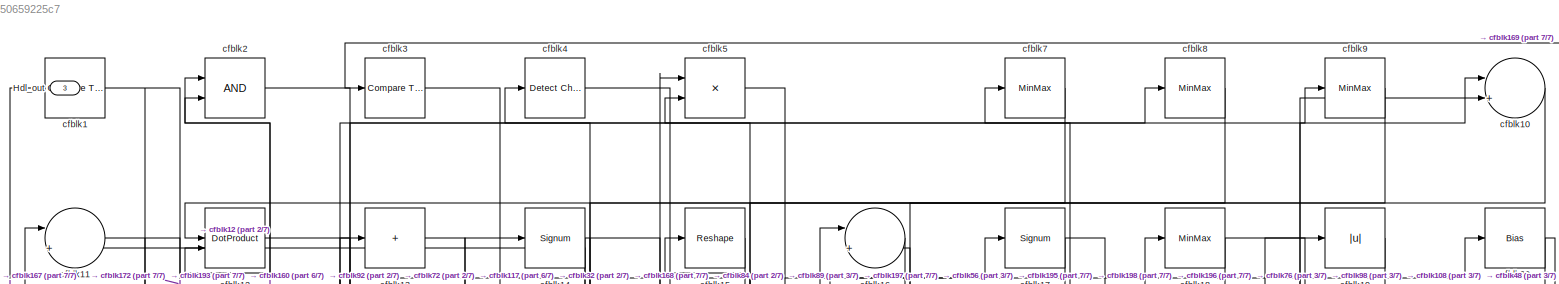
[diagram: root canvas - part 1/7, full width, top band]
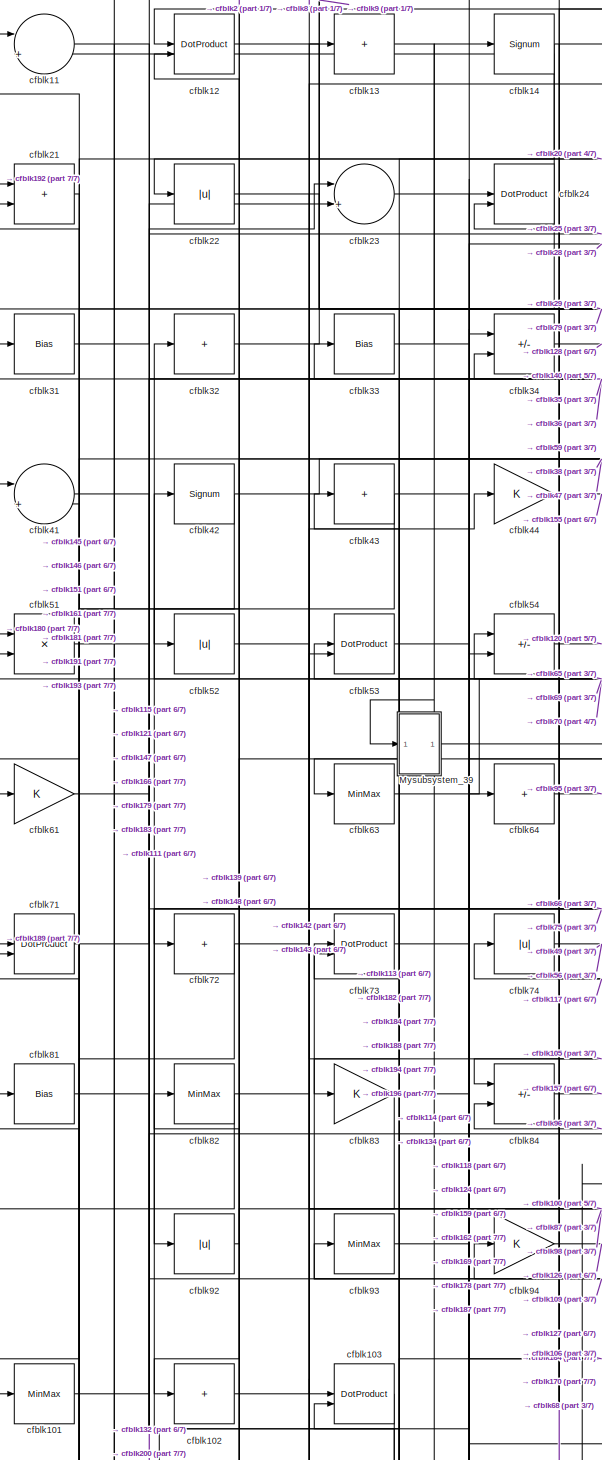
[diagram: root canvas - part 2/7, top left region]
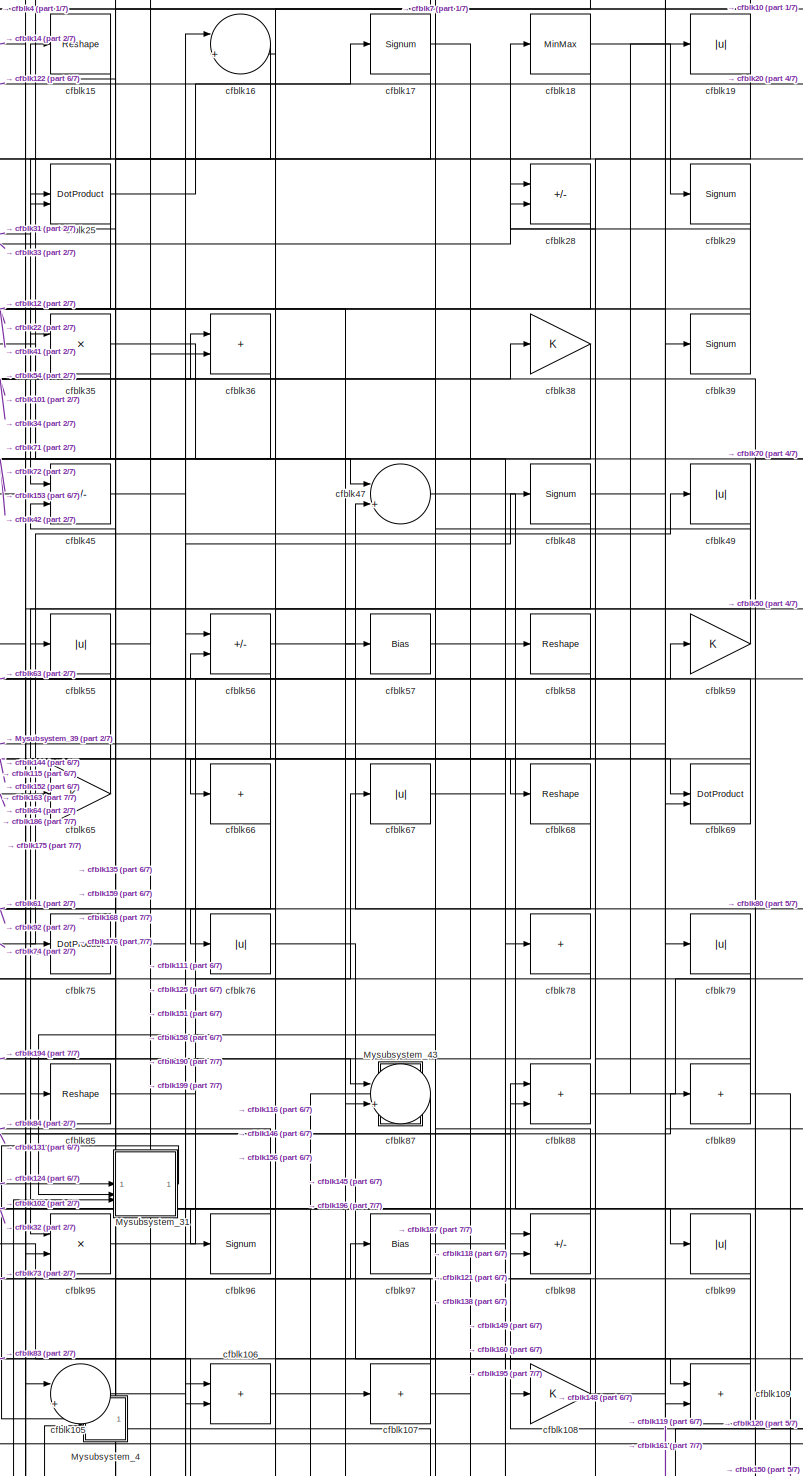
[diagram: root canvas - part 3/7, top center region]
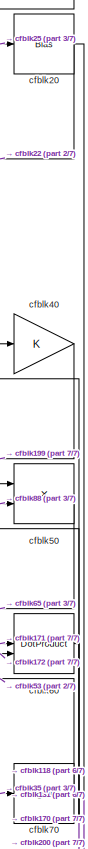
[diagram: root canvas - part 4/7, top right region]
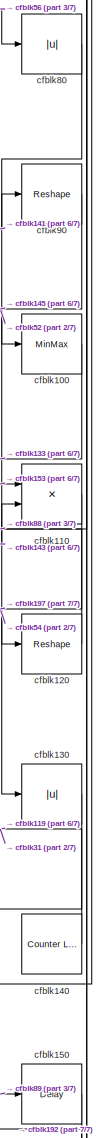
[diagram: root canvas - part 5/7, middle right region]
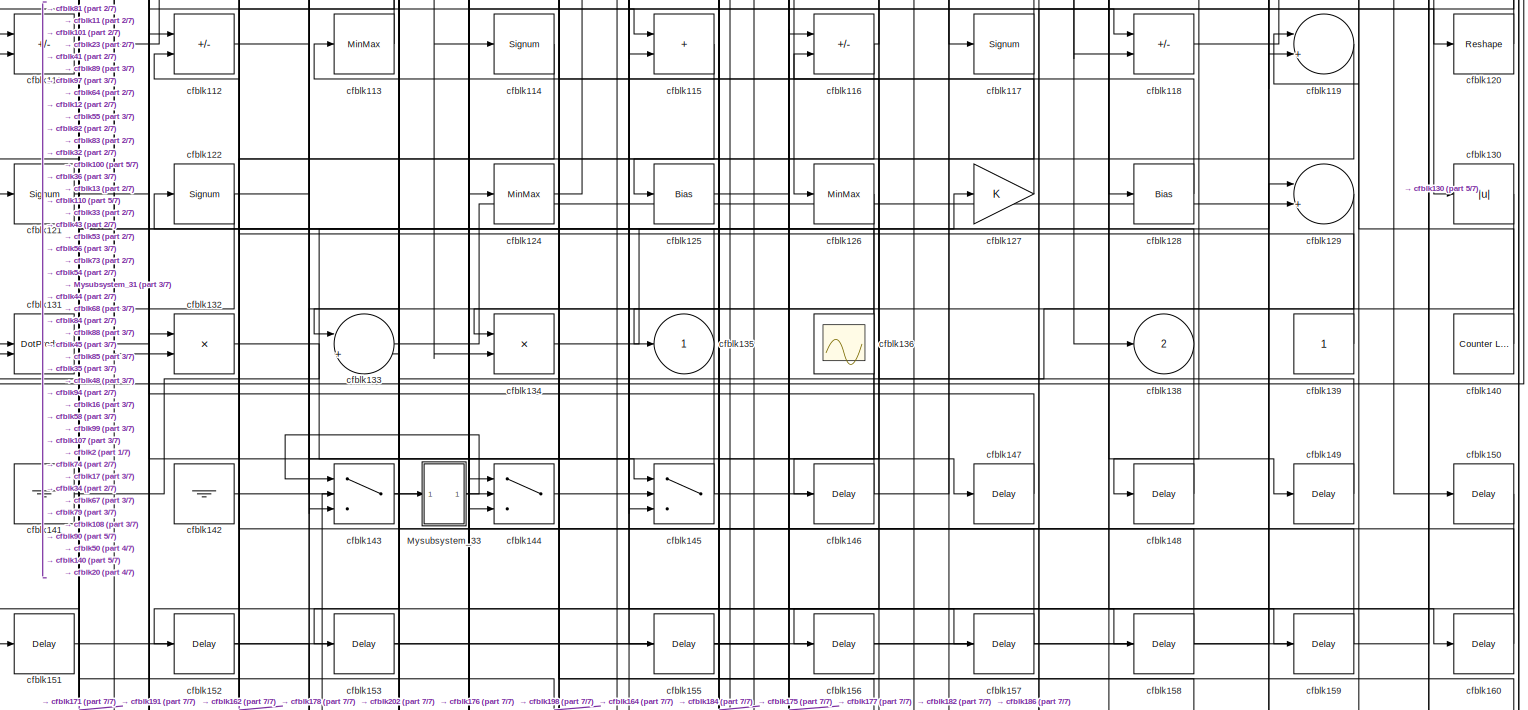
[diagram: root canvas - part 6/7, full width, middle band]
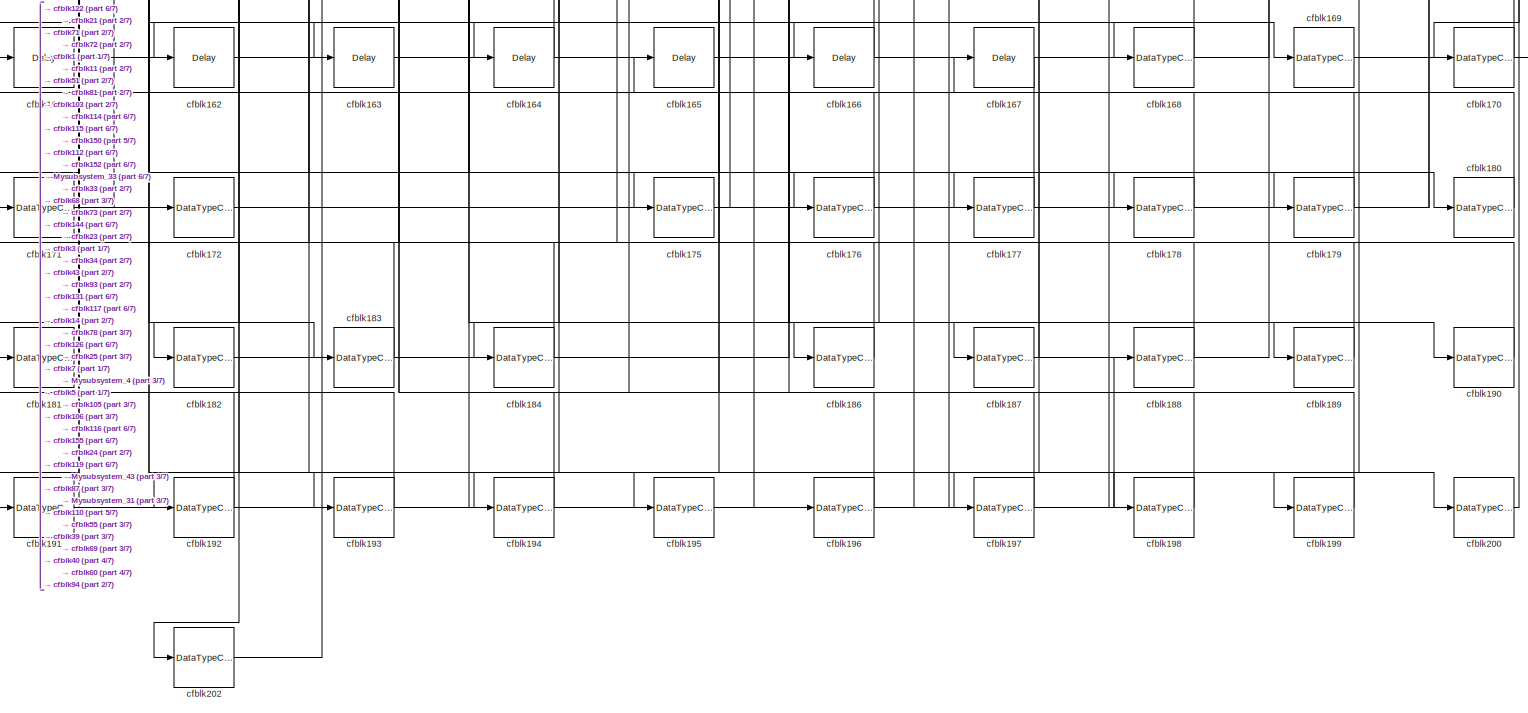
[diagram: root canvas - part 7/7, full width, bottom band]
MODEL slx_f650659225c7
KIND model
CONFIG AbsTol = auto
CONFIG EnableMultiTasking = off
CONFIG FixedStep = auto
CONFIG MaxStep = auto
CONFIG MinStep = auto
CONFIG RelTol = 1e-3
CONFIG SampleTimeConstraint = Unconstrained
CONFIG SolverName = VariableStepAuto
CONFIG StartTime = 0.0
CONFIG StopTime = 10.0
BLOCK [Outport] Hdl_out
  OutDataTypeStr = uint8
  Port = 3
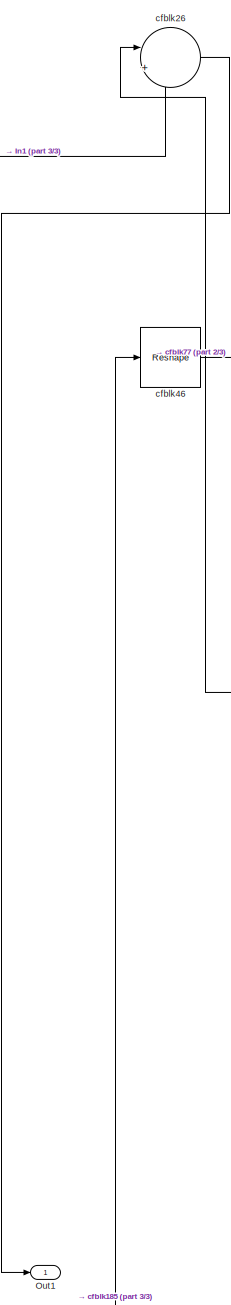
[diagram: Mysubsystem_31 - part 1/3, top center region]
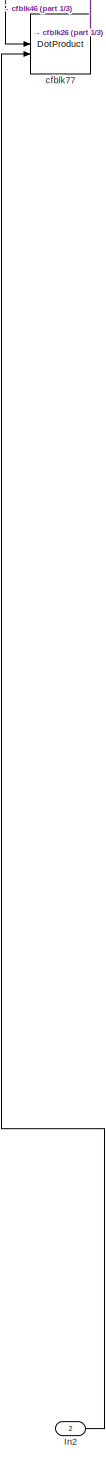
[diagram: Mysubsystem_31 - part 2/3, middle right region]
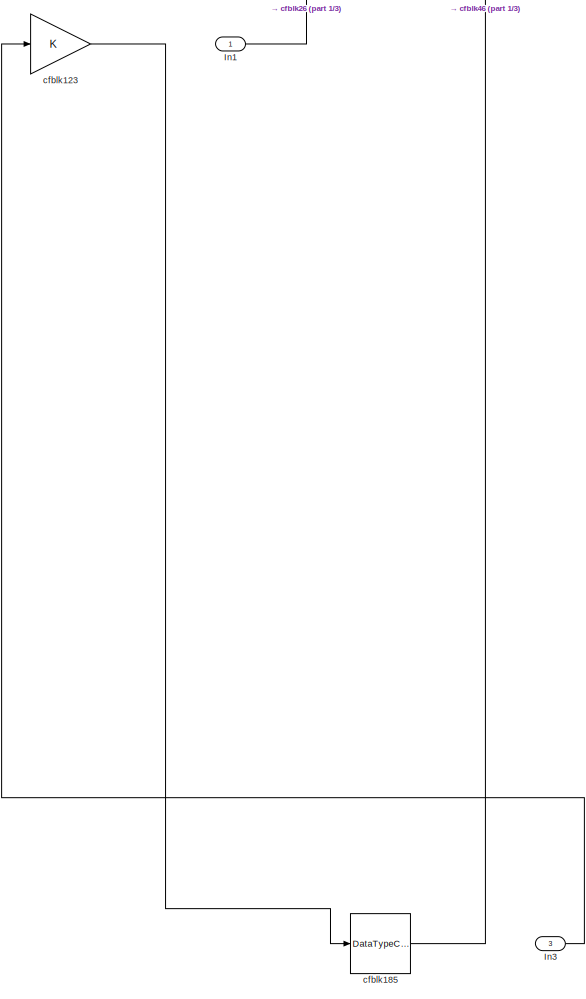
[diagram: Mysubsystem_31 - part 3/3, full width, bottom band]
BLOCK [SubSystem] Mysubsystem_31
  RTWFcnName = Mysubsystem_31
  RTWFcnNameOpts = User specified
  RTWFileNameOpts = Use function name
  RTWSystemCode = Reusable function
  TreatAsAtomicUnit = on
BLOCK [Inport] Mysubsystem_31/In1
BLOCK [Inport] Mysubsystem_31/In2
  Port = 2
BLOCK [Inport] Mysubsystem_31/In3
  Port = 3
BLOCK [Outport] Mysubsystem_31/Out1
BLOCK [Gain] Mysubsystem_31/cfblk123
BLOCK [DataTypeConversion] Mysubsystem_31/cfblk185
  OutDataTypeStr = uint8
  RndMeth = Floor
  SaturateOnIntegerOverflow = off
BLOCK [Sum] Mysubsystem_31/cfblk26
  Inputs = |++
BLOCK [Reshape] Mysubsystem_31/cfblk46
BLOCK [DotProduct] Mysubsystem_31/cfblk77
  OutDataTypeStr = Inherit: Inherit via internal rule
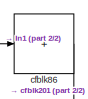
[diagram: Mysubsystem_33 - part 1/2, top right region]
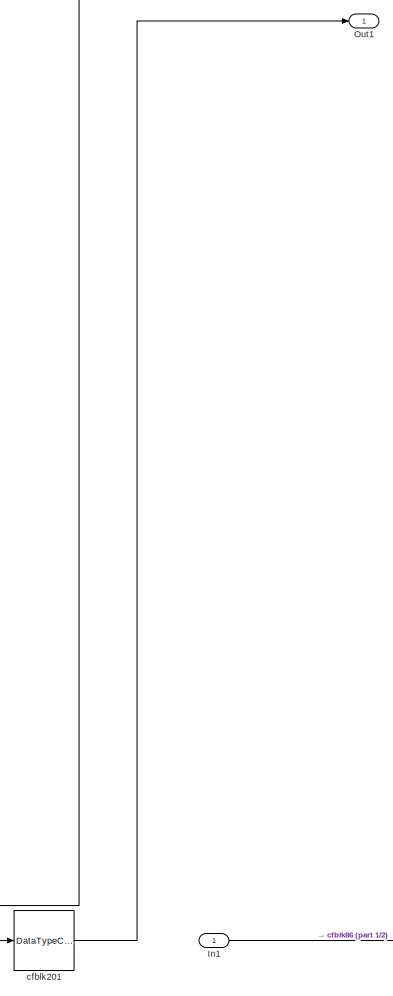
[diagram: Mysubsystem_33 - part 2/2, bottom left region]
BLOCK [SubSystem] Mysubsystem_33
  RTWFcnName = Mysubsystem_33
  RTWFcnNameOpts = User specified
  RTWFileNameOpts = Use function name
  RTWSystemCode = Reusable function
  TreatAsAtomicUnit = on
BLOCK [Inport] Mysubsystem_33/In1
BLOCK [Outport] Mysubsystem_33/Out1
BLOCK [DataTypeConversion] Mysubsystem_33/cfblk201
  OutDataTypeStr = uint8
  RndMeth = Floor
  SaturateOnIntegerOverflow = off
BLOCK [Sum] Mysubsystem_33/cfblk86
  IconShape = rectangular
  Inputs = +
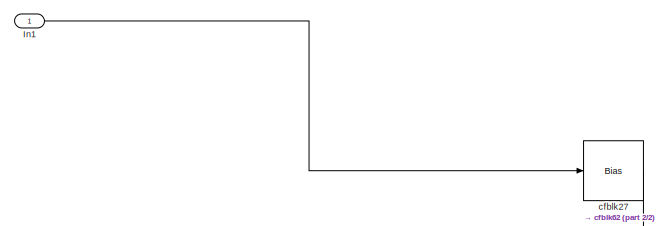
[diagram: Mysubsystem_39 - part 1/2, top center region]
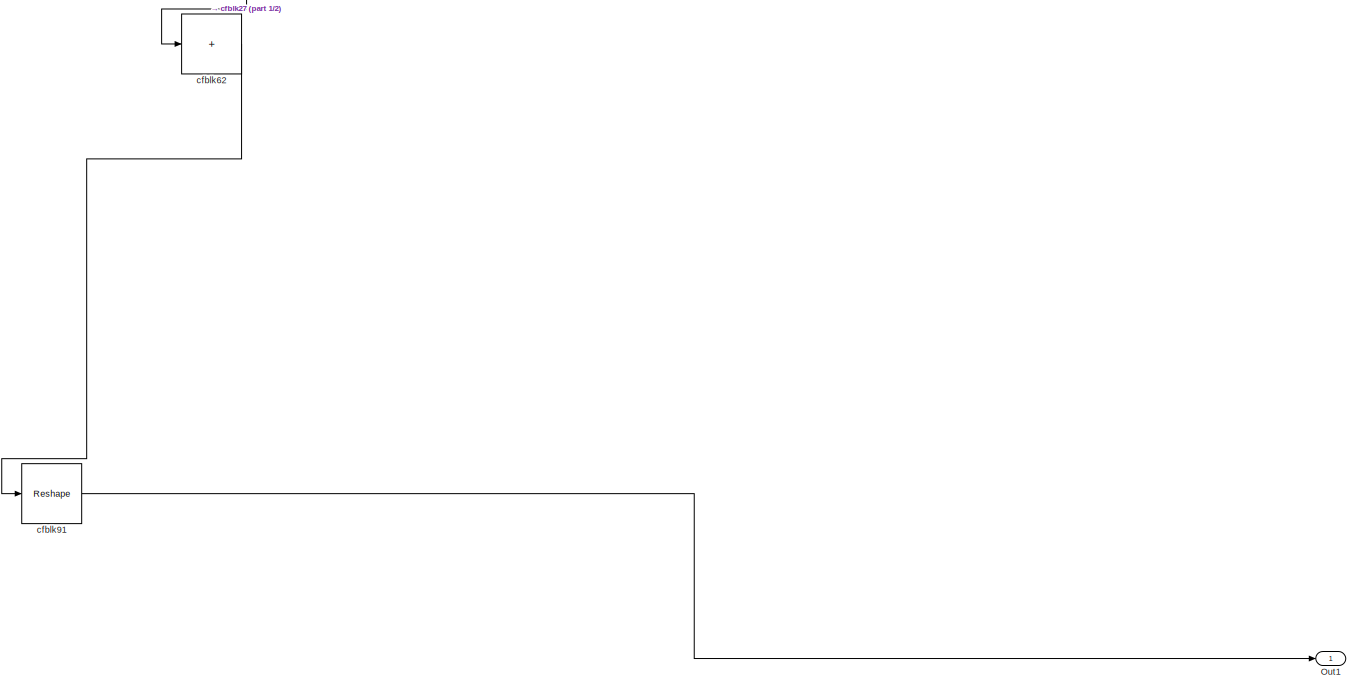
[diagram: Mysubsystem_39 - part 2/2, full width, bottom band]
BLOCK [SubSystem] Mysubsystem_39
  RTWFcnName = Mysubsystem_39
  RTWFcnNameOpts = User specified
  RTWFileNameOpts = Use function name
  RTWSystemCode = Reusable function
  TreatAsAtomicUnit = on
BLOCK [Inport] Mysubsystem_39/In1
BLOCK [Outport] Mysubsystem_39/Out1
BLOCK [Bias] Mysubsystem_39/cfblk27
  Bias = 0.0
  SaturateOnIntegerOverflow = off
BLOCK [Sum] Mysubsystem_39/cfblk62
  IconShape = rectangular
  Inputs = +
BLOCK [Reshape] Mysubsystem_39/cfblk91
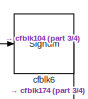
[diagram: Mysubsystem_4 - part 1/4, top center region]
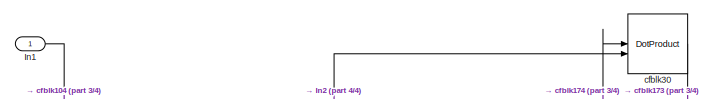
[diagram: Mysubsystem_4 - part 2/4, top right region]
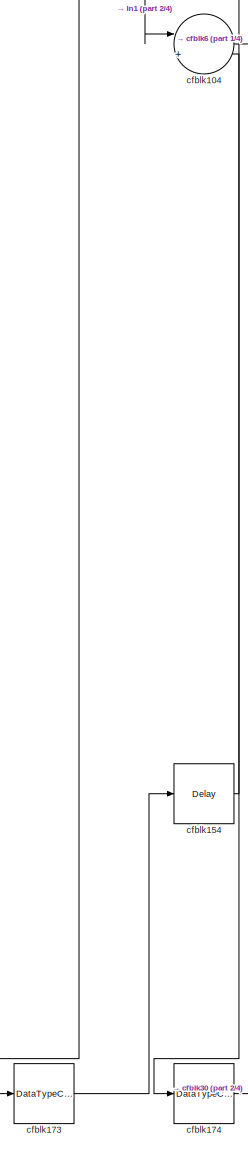
[diagram: Mysubsystem_4 - part 3/4, bottom left region]
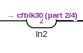
[diagram: Mysubsystem_4 - part 4/4, bottom left region]
BLOCK [SubSystem] Mysubsystem_4
  RTWFcnName = Mysubsystem_4
  RTWFcnNameOpts = User specified
  RTWFileNameOpts = Use function name
  RTWSystemCode = Reusable function
  TreatAsAtomicUnit = on
BLOCK [Inport] Mysubsystem_4/In1
BLOCK [Inport] Mysubsystem_4/In2
  Port = 2
BLOCK [Sum] Mysubsystem_4/cfblk104
  Inputs = |++
BLOCK [Delay] Mysubsystem_4/cfblk154
  InputPortMap = u0
  SampleTime = 1
BLOCK [DataTypeConversion] Mysubsystem_4/cfblk173
  OutDataTypeStr = uint8
  RndMeth = Floor
  SaturateOnIntegerOverflow = off
BLOCK [DataTypeConversion] Mysubsystem_4/cfblk174
  OutDataTypeStr = uint8
  RndMeth = Floor
  SaturateOnIntegerOverflow = off
BLOCK [DotProduct] Mysubsystem_4/cfblk30
  OutDataTypeStr = Inherit: Inherit via internal rule
BLOCK [Signum] Mysubsystem_4/cfblk6
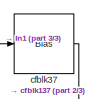
[diagram: Mysubsystem_43 - part 1/3, top right region]
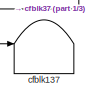
[diagram: Mysubsystem_43 - part 2/3, middle right region]
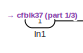
[diagram: Mysubsystem_43 - part 3/3, bottom left region]
BLOCK [SubSystem] Mysubsystem_43
  RTWFcnName = Mysubsystem_43
  RTWFcnNameOpts = User specified
  RTWFileNameOpts = Use function name
  RTWSystemCode = Reusable function
  TreatAsAtomicUnit = on
BLOCK [Inport] Mysubsystem_43/In1
BLOCK [Terminator] Mysubsystem_43/cfblk137
BLOCK [Bias] Mysubsystem_43/cfblk37
  Bias = 0.0
  SaturateOnIntegerOverflow = off
BLOCK [Reference] cfblk1  REF=hdlsllib/Logic and Bit
Operations/Compare
To Zero
  SourceBlock = hdlsllib/Logic and Bit\nOperations/Compare\nTo Zero
  SourceType = Compare To Zero
BLOCK [Sum] cfblk10
  Inputs = |++
  OutDataTypeStr = uint8
BLOCK [MinMax] cfblk100
  OutDataTypeStr = uint8
BLOCK [MinMax] cfblk101
  OutDataTypeStr = uint8
BLOCK [Sum] cfblk102
  IconShape = rectangular
  Inputs = +
  OutDataTypeStr = uint8
BLOCK [DotProduct] cfblk103
  OutDataTypeStr = uint8
BLOCK [Sum] cfblk105
  Inputs = |++
  OutDataTypeStr = uint8
BLOCK [Sum] cfblk106
  IconShape = rectangular
  OutDataTypeStr = uint8
BLOCK [Sum] cfblk107
  IconShape = rectangular
  Inputs = +
  OutDataTypeStr = uint8
BLOCK [Gain] cfblk108
  OutDataTypeStr = uint8
BLOCK [Sum] cfblk109
  IconShape = rectangular
  OutDataTypeStr = uint8
BLOCK [Sum] cfblk11
  Inputs = |++
  OutDataTypeStr = uint8
BLOCK [Product] cfblk110
  Inputs = */
  OutDataTypeStr = uint8
  RndMeth = Zero
  SaturateOnIntegerOverflow = on
BLOCK [Sum] cfblk111
  IconShape = rectangular
  Inputs = +-
  OutDataTypeStr = uint8
BLOCK [Sum] cfblk112
  IconShape = rectangular
  Inputs = +-
  OutDataTypeStr = uint8
BLOCK [MinMax] cfblk113
  OutDataTypeStr = uint8
BLOCK [Signum] cfblk114
BLOCK [Sum] cfblk115
  IconShape = rectangular
  OutDataTypeStr = uint8
BLOCK [Sum] cfblk116
  IconShape = rectangular
  Inputs = +-
  OutDataTypeStr = uint8
BLOCK [Signum] cfblk117
BLOCK [Sum] cfblk118
  IconShape = rectangular
  Inputs = +-
  OutDataTypeStr = uint8
BLOCK [Sum] cfblk119
  Inputs = |++
  OutDataTypeStr = uint8
BLOCK [DotProduct] cfblk12
  OutDataTypeStr = uint8
BLOCK [Reshape] cfblk120
BLOCK [Signum] cfblk121
BLOCK [Signum] cfblk122
BLOCK [MinMax] cfblk124
  OutDataTypeStr = uint8
BLOCK [Bias] cfblk125
  Bias = 0.0
  SaturateOnIntegerOverflow = off
BLOCK [MinMax] cfblk126
  OutDataTypeStr = uint8
BLOCK [Gain] cfblk127
  OutDataTypeStr = uint8
BLOCK [Bias] cfblk128
  Bias = 0.0
  SaturateOnIntegerOverflow = off
BLOCK [Sum] cfblk129
  Inputs = |++
  OutDataTypeStr = uint8
BLOCK [Sum] cfblk13
  IconShape = rectangular
  Inputs = +
  OutDataTypeStr = uint8
BLOCK [Abs] cfblk130
  OutDataTypeStr = uint8
  SaturateOnIntegerOverflow = off
BLOCK [DotProduct] cfblk131
  OutDataTypeStr = uint8
BLOCK [Product] cfblk132
  Inputs = */
  OutDataTypeStr = uint8
  RndMeth = Zero
  SaturateOnIntegerOverflow = on
BLOCK [Sum] cfblk133
  Inputs = |++
  OutDataTypeStr = uint8
BLOCK [Product] cfblk134
  Inputs = */
  OutDataTypeStr = uint8
  RndMeth = Zero
  SaturateOnIntegerOverflow = on
BLOCK [Outport] cfblk135
  OutDataTypeStr = uint8
  VectorParamsAs1DForOutWhenUnconnected = off
BLOCK [Scope] cfblk136
  Floating = on
  NumInputPorts = 1
  ScopeSpecificationString = Simulink.scopes.TimeScopeBlockCfg('CurrentConfiguration', extmgr.ConfigurationSet(extmgr.Configuration('Core','General UI',true,'FigureColor',[0.156862745098039 0.156862745098039 0.156862745098039]),extmgr.Configuration('Core','Source UI',true),extmgr.Configuration('Sources','WiredSimulink',true,'DataLoggingVariableName','ScopeData1','DataLoggingSaveFormat','StructureWithTime','DataLoggingLimitDat...<+2713ch>
BLOCK [Outport] cfblk138
  OutDataTypeStr = uint8
  Port = 2
  VectorParamsAs1DForOutWhenUnconnected = off
BLOCK [Constant] cfblk139
  OutDataTypeStr = uint8
  SampleTime = -1
BLOCK [Signum] cfblk14
BLOCK [Reference] cfblk140  REF=hdlsllib/Sources/Counter
Limited
  SourceBlock = hdlsllib/Sources/Counter\nLimited
  SourceType = Counter Limited
BLOCK [Ground] cfblk141
BLOCK [Ground] cfblk142
BLOCK [Switch] cfblk143
  InputSameDT = off
  OutDataTypeStr = uint8
  SaturateOnIntegerOverflow = off
BLOCK [Switch] cfblk144
  InputSameDT = off
  OutDataTypeStr = uint8
  SaturateOnIntegerOverflow = off
BLOCK [Switch] cfblk145
  InputSameDT = off
  OutDataTypeStr = uint8
  SaturateOnIntegerOverflow = off
BLOCK [Delay] cfblk146
  InputPortMap = u0
  SampleTime = 1
BLOCK [Delay] cfblk147
  InputPortMap = u0
  SampleTime = 1
BLOCK [Delay] cfblk148
  InputPortMap = u0
  SampleTime = 1
BLOCK [Delay] cfblk149
  InputPortMap = u0
  SampleTime = 1
BLOCK [Reshape] cfblk15
BLOCK [Delay] cfblk150
  InputPortMap = u0
  SampleTime = 1
BLOCK [Delay] cfblk151
  InputPortMap = u0
  SampleTime = 1
BLOCK [Delay] cfblk152
  InputPortMap = u0
  SampleTime = 1
BLOCK [Delay] cfblk153
  InputPortMap = u0
  SampleTime = 1
BLOCK [Delay] cfblk155
  InputPortMap = u0
  SampleTime = 1
BLOCK [Delay] cfblk156
  InputPortMap = u0
  SampleTime = 1
BLOCK [Delay] cfblk157
  InputPortMap = u0
  SampleTime = 1
BLOCK [Delay] cfblk158
  InputPortMap = u0
  SampleTime = 1
BLOCK [Delay] cfblk159
  InputPortMap = u0
  SampleTime = 1
BLOCK [Sum] cfblk16
  Inputs = |++
  OutDataTypeStr = uint8
BLOCK [Delay] cfblk160
  InputPortMap = u0
  SampleTime = 1
BLOCK [Delay] cfblk161
  InputPortMap = u0
  SampleTime = 1
BLOCK [Delay] cfblk162
  InputPortMap = u0
  SampleTime = 1
BLOCK [Delay] cfblk163
  InputPortMap = u0
  SampleTime = 1
BLOCK [Delay] cfblk164
  InputPortMap = u0
  SampleTime = 1
BLOCK [Delay] cfblk165
  InputPortMap = u0
  SampleTime = 1
BLOCK [Delay] cfblk166
  InputPortMap = u0
  SampleTime = 1
BLOCK [Delay] cfblk167
  InputPortMap = u0
  SampleTime = 1
BLOCK [DataTypeConversion] cfblk168
  OutDataTypeStr = uint8
  RndMeth = Floor
  SaturateOnIntegerOverflow = off
BLOCK [DataTypeConversion] cfblk169
  OutDataTypeStr = uint8
  RndMeth = Floor
  SaturateOnIntegerOverflow = off
BLOCK [Signum] cfblk17
BLOCK [DataTypeConversion] cfblk170
  OutDataTypeStr = uint8
  RndMeth = Floor
  SaturateOnIntegerOverflow = off
BLOCK [DataTypeConversion] cfblk171
  OutDataTypeStr = uint8
  RndMeth = Floor
  SaturateOnIntegerOverflow = off
BLOCK [DataTypeConversion] cfblk172
  OutDataTypeStr = uint8
  RndMeth = Floor
  SaturateOnIntegerOverflow = off
BLOCK [DataTypeConversion] cfblk175
  OutDataTypeStr = uint8
  RndMeth = Floor
  SaturateOnIntegerOverflow = off
BLOCK [DataTypeConversion] cfblk176
  OutDataTypeStr = uint8
  RndMeth = Floor
  SaturateOnIntegerOverflow = off
BLOCK [DataTypeConversion] cfblk177
  OutDataTypeStr = uint8
  RndMeth = Floor
  SaturateOnIntegerOverflow = off
BLOCK [DataTypeConversion] cfblk178
  OutDataTypeStr = uint8
  RndMeth = Floor
  SaturateOnIntegerOverflow = off
BLOCK [DataTypeConversion] cfblk179
  OutDataTypeStr = uint8
  RndMeth = Floor
  SaturateOnIntegerOverflow = off
BLOCK [MinMax] cfblk18
  OutDataTypeStr = uint8
BLOCK [DataTypeConversion] cfblk180
  OutDataTypeStr = uint8
  RndMeth = Floor
  SaturateOnIntegerOverflow = off
BLOCK [DataTypeConversion] cfblk181
  OutDataTypeStr = uint8
  RndMeth = Floor
  SaturateOnIntegerOverflow = off
BLOCK [DataTypeConversion] cfblk182
  OutDataTypeStr = uint8
  RndMeth = Floor
  SaturateOnIntegerOverflow = off
BLOCK [DataTypeConversion] cfblk183
  OutDataTypeStr = uint8
  RndMeth = Floor
  SaturateOnIntegerOverflow = off
BLOCK [DataTypeConversion] cfblk184
  OutDataTypeStr = uint8
  RndMeth = Floor
  SaturateOnIntegerOverflow = off
BLOCK [DataTypeConversion] cfblk186
  OutDataTypeStr = uint8
  RndMeth = Floor
  SaturateOnIntegerOverflow = off
BLOCK [DataTypeConversion] cfblk187
  OutDataTypeStr = uint8
  RndMeth = Floor
  SaturateOnIntegerOverflow = off
BLOCK [DataTypeConversion] cfblk188
  OutDataTypeStr = uint8
  RndMeth = Floor
  SaturateOnIntegerOverflow = off
BLOCK [DataTypeConversion] cfblk189
  OutDataTypeStr = uint8
  RndMeth = Floor
  SaturateOnIntegerOverflow = off
BLOCK [Abs] cfblk19
  OutDataTypeStr = uint8
  SaturateOnIntegerOverflow = off
BLOCK [DataTypeConversion] cfblk190
  OutDataTypeStr = uint8
  RndMeth = Floor
  SaturateOnIntegerOverflow = off
BLOCK [DataTypeConversion] cfblk191
  OutDataTypeStr = uint8
  RndMeth = Floor
  SaturateOnIntegerOverflow = off
BLOCK [DataTypeConversion] cfblk192
  OutDataTypeStr = uint8
  RndMeth = Floor
  SaturateOnIntegerOverflow = off
BLOCK [DataTypeConversion] cfblk193
  OutDataTypeStr = uint8
  RndMeth = Floor
  SaturateOnIntegerOverflow = off
BLOCK [DataTypeConversion] cfblk194
  OutDataTypeStr = uint8
  RndMeth = Floor
  SaturateOnIntegerOverflow = off
BLOCK [DataTypeConversion] cfblk195
  OutDataTypeStr = uint8
  RndMeth = Floor
  SaturateOnIntegerOverflow = off
BLOCK [DataTypeConversion] cfblk196
  OutDataTypeStr = uint8
  RndMeth = Floor
  SaturateOnIntegerOverflow = off
BLOCK [DataTypeConversion] cfblk197
  OutDataTypeStr = uint8
  RndMeth = Floor
  SaturateOnIntegerOverflow = off
BLOCK [DataTypeConversion] cfblk198
  OutDataTypeStr = uint8
  RndMeth = Floor
  SaturateOnIntegerOverflow = off
BLOCK [DataTypeConversion] cfblk199
  OutDataTypeStr = uint8
  RndMeth = Floor
  SaturateOnIntegerOverflow = off
BLOCK [Logic] cfblk2
  AllPortsSameDT = off
  OutDataTypeStr = boolean
BLOCK [Bias] cfblk20
  Bias = 0.0
  SaturateOnIntegerOverflow = off
BLOCK [DataTypeConversion] cfblk200
  OutDataTypeStr = uint8
  RndMeth = Floor
  SaturateOnIntegerOverflow = off
BLOCK [DataTypeConversion] cfblk202
  OutDataTypeStr = uint8
  RndMeth = Floor
  SaturateOnIntegerOverflow = off
BLOCK [Sum] cfblk21
  IconShape = rectangular
  OutDataTypeStr = uint8
BLOCK [Abs] cfblk22
  OutDataTypeStr = uint8
  SaturateOnIntegerOverflow = off
BLOCK [Sum] cfblk23
  Inputs = |++
  OutDataTypeStr = uint8
BLOCK [DotProduct] cfblk24
  OutDataTypeStr = uint8
BLOCK [DotProduct] cfblk25
  OutDataTypeStr = uint8
BLOCK [Sum] cfblk28
  IconShape = rectangular
  Inputs = +-
  OutDataTypeStr = uint8
BLOCK [Signum] cfblk29
BLOCK [Reference] cfblk3  REF=hdlsllib/Logic and Bit
Operations/Compare
To Constant
  SourceBlock = hdlsllib/Logic and Bit\nOperations/Compare\nTo Constant
  SourceType = Compare To Constant
BLOCK [Bias] cfblk31
  Bias = 0.0
  SaturateOnIntegerOverflow = off
BLOCK [Sum] cfblk32
  IconShape = rectangular
  Inputs = +
  OutDataTypeStr = uint8
BLOCK [Bias] cfblk33
  Bias = 0.0
  SaturateOnIntegerOverflow = off
BLOCK [Sum] cfblk34
  IconShape = rectangular
  Inputs = +-
  OutDataTypeStr = uint8
BLOCK [Product] cfblk35
  Inputs = */
  OutDataTypeStr = uint8
  RndMeth = Zero
  SaturateOnIntegerOverflow = on
BLOCK [Sum] cfblk36
  IconShape = rectangular
  OutDataTypeStr = uint8
BLOCK [Gain] cfblk38
  OutDataTypeStr = uint8
BLOCK [Signum] cfblk39
BLOCK [Reference] cfblk4  REF=simulink/Logic and Bit
Operations/Detect
Change
  LibrarySourceBlock = hdlsllib/Logic and Bit\nOperations/Detect\nChange
  SourceBlock = simulink/Logic and Bit\nOperations/Detect\nChange
  SourceType = Detect Change
BLOCK [Gain] cfblk40
  OutDataTypeStr = uint8
BLOCK [Sum] cfblk41
  Inputs = |++
  OutDataTypeStr = uint8
BLOCK [Signum] cfblk42
BLOCK [Sum] cfblk43
  IconShape = rectangular
  Inputs = +
  OutDataTypeStr = uint8
BLOCK [Gain] cfblk44
  OutDataTypeStr = uint8
BLOCK [Sum] cfblk45
  IconShape = rectangular
  Inputs = +-
  OutDataTypeStr = uint8
BLOCK [Sum] cfblk47
  Inputs = |++
  OutDataTypeStr = uint8
BLOCK [Signum] cfblk48
BLOCK [Abs] cfblk49
  OutDataTypeStr = uint8
  SaturateOnIntegerOverflow = off
BLOCK [Product] cfblk5
  Inputs = */
  OutDataTypeStr = uint8
  RndMeth = Zero
  SaturateOnIntegerOverflow = on
BLOCK [Product] cfblk50
  Inputs = */
  OutDataTypeStr = uint8
  RndMeth = Zero
  SaturateOnIntegerOverflow = on
BLOCK [Product] cfblk51
  Inputs = */
  OutDataTypeStr = uint8
  RndMeth = Zero
  SaturateOnIntegerOverflow = on
BLOCK [Abs] cfblk52
  OutDataTypeStr = uint8
  SaturateOnIntegerOverflow = off
BLOCK [DotProduct] cfblk53
  OutDataTypeStr = uint8
BLOCK [Sum] cfblk54
  IconShape = rectangular
  Inputs = +-
  OutDataTypeStr = uint8
BLOCK [Abs] cfblk55
  OutDataTypeStr = uint8
  SaturateOnIntegerOverflow = off
BLOCK [Sum] cfblk56
  IconShape = rectangular
  Inputs = +-
  OutDataTypeStr = uint8
BLOCK [Bias] cfblk57
  Bias = 0.0
  SaturateOnIntegerOverflow = off
BLOCK [Reshape] cfblk58
BLOCK [Gain] cfblk59
  OutDataTypeStr = uint8
BLOCK [DotProduct] cfblk60
  OutDataTypeStr = uint8
BLOCK [Gain] cfblk61
  OutDataTypeStr = uint8
BLOCK [MinMax] cfblk63
  OutDataTypeStr = uint8
BLOCK [Sum] cfblk64
  IconShape = rectangular
  Inputs = +
  OutDataTypeStr = uint8
BLOCK [Gain] cfblk65
  OutDataTypeStr = uint8
BLOCK [Sum] cfblk66
  IconShape = rectangular
  Inputs = +
  OutDataTypeStr = uint8
BLOCK [Abs] cfblk67
  OutDataTypeStr = uint8
  SaturateOnIntegerOverflow = off
BLOCK [Reshape] cfblk68
BLOCK [DotProduct] cfblk69
  OutDataTypeStr = uint8
BLOCK [MinMax] cfblk7
  OutDataTypeStr = uint8
BLOCK [Signum] cfblk70
BLOCK [DotProduct] cfblk71
  OutDataTypeStr = uint8
BLOCK [Sum] cfblk72
  IconShape = rectangular
  Inputs = +
  OutDataTypeStr = uint8
BLOCK [DotProduct] cfblk73
  OutDataTypeStr = uint8
BLOCK [Abs] cfblk74
  OutDataTypeStr = uint8
  SaturateOnIntegerOverflow = off
BLOCK [DotProduct] cfblk75
  OutDataTypeStr = uint8
BLOCK [Abs] cfblk76
  OutDataTypeStr = uint8
  SaturateOnIntegerOverflow = off
BLOCK [Sum] cfblk78
  IconShape = rectangular
  Inputs = +
  OutDataTypeStr = uint8
BLOCK [Abs] cfblk79
  OutDataTypeStr = uint8
  SaturateOnIntegerOverflow = off
BLOCK [MinMax] cfblk8
  OutDataTypeStr = uint8
BLOCK [Abs] cfblk80
  OutDataTypeStr = uint8
  SaturateOnIntegerOverflow = off
BLOCK [Bias] cfblk81
  Bias = 0.0
  SaturateOnIntegerOverflow = off
BLOCK [MinMax] cfblk82
  OutDataTypeStr = uint8
BLOCK [Gain] cfblk83
  OutDataTypeStr = uint8
BLOCK [Sum] cfblk84
  IconShape = rectangular
  Inputs = +-
  OutDataTypeStr = uint8
BLOCK [Reshape] cfblk85
BLOCK [Sum] cfblk87
  Inputs = |++
  OutDataTypeStr = uint8
BLOCK [Sum] cfblk88
  IconShape = rectangular
  OutDataTypeStr = uint8
BLOCK [Sum] cfblk89
  IconShape = rectangular
  Inputs = +
  OutDataTypeStr = uint8
BLOCK [MinMax] cfblk9
  OutDataTypeStr = uint8
BLOCK [Reshape] cfblk90
BLOCK [Abs] cfblk92
  OutDataTypeStr = uint8
  SaturateOnIntegerOverflow = off
BLOCK [MinMax] cfblk93
  OutDataTypeStr = uint8
BLOCK [Gain] cfblk94
  OutDataTypeStr = uint8
BLOCK [Product] cfblk95
  Inputs = */
  OutDataTypeStr = uint8
  RndMeth = Zero
  SaturateOnIntegerOverflow = on
BLOCK [Signum] cfblk96
BLOCK [Bias] cfblk97
  Bias = 0.0
  SaturateOnIntegerOverflow = off
BLOCK [Sum] cfblk98
  IconShape = rectangular
  Inputs = +-
  OutDataTypeStr = uint8
BLOCK [Abs] cfblk99
  OutDataTypeStr = uint8
  SaturateOnIntegerOverflow = off
LINE Mysubsystem_31/In1:1 -> Mysubsystem_31/cfblk26:2
LINE Mysubsystem_31/In2:1 -> Mysubsystem_31/cfblk77:2
LINE Mysubsystem_31/In3:1 -> Mysubsystem_31/cfblk123:1
LINE Mysubsystem_31/cfblk123:1 -> Mysubsystem_31/cfblk185:1
LINE Mysubsystem_31/cfblk185:1 -> Mysubsystem_31/cfblk46:1
LINE Mysubsystem_31/cfblk26:1 -> Mysubsystem_31/Out1:1
LINE Mysubsystem_31/cfblk46:1 -> Mysubsystem_31/cfblk77:1
LINE Mysubsystem_31/cfblk77:1 -> Mysubsystem_31/cfblk26:1
LINE Mysubsystem_31:1 -> Mysubsystem_4:1
LINE Mysubsystem_33/In1:1 -> Mysubsystem_33/cfblk86:1
LINE Mysubsystem_33/cfblk201:1 -> Mysubsystem_33/Out1:1
LINE Mysubsystem_33/cfblk86:1 -> Mysubsystem_33/cfblk201:1
LINE Mysubsystem_33:1 -> cfblk143:1
LINE Mysubsystem_39/In1:1 -> Mysubsystem_39/cfblk27:1
LINE Mysubsystem_39/cfblk27:1 -> Mysubsystem_39/cfblk62:1
LINE Mysubsystem_39/cfblk62:1 -> Mysubsystem_39/cfblk91:1
LINE Mysubsystem_39/cfblk91:1 -> Mysubsystem_39/Out1:1
LINE Mysubsystem_39:1 -> cfblk109:2
LINE Mysubsystem_4/In1:1 -> Mysubsystem_4/cfblk104:1
LINE Mysubsystem_4/In2:1 -> Mysubsystem_4/cfblk30:2
LINE Mysubsystem_4/cfblk104:1 -> Mysubsystem_4/cfblk6:1
LINE Mysubsystem_4/cfblk154:1 -> Mysubsystem_4/cfblk104:2
LINE Mysubsystem_4/cfblk173:1 -> Mysubsystem_4/cfblk154:1
LINE Mysubsystem_4/cfblk174:1 -> Mysubsystem_4/cfblk30:1
LINE Mysubsystem_4/cfblk30:1 -> Mysubsystem_4/cfblk173:1
LINE Mysubsystem_4/cfblk6:1 -> Mysubsystem_4/cfblk174:1
LINE Mysubsystem_43/In1:1 -> Mysubsystem_43/cfblk37:1
LINE Mysubsystem_43/cfblk37:1 -> Mysubsystem_43/cfblk137:1
LINE cfblk100:1 -> cfblk133:1
NET cfblk101:1 -> cfblk115:1, cfblk35:2
LINE cfblk102:1 -> cfblk44:1
LINE cfblk103:1 -> cfblk182:1
LINE cfblk105:1 -> cfblk190:1
LINE cfblk106:1 -> cfblk57:1
NET cfblk107:1 -> cfblk138:1, cfblk15:1
NET cfblk108:1 -> cfblk10:2, cfblk119:2, cfblk98:2
LINE cfblk109:1 -> cfblk73:1
LINE cfblk10:1 -> cfblk76:1
LINE cfblk110:1 -> cfblk197:1
LINE cfblk111:1 -> cfblk64:1
LINE cfblk112:1 -> cfblk176:1
LINE cfblk113:1 -> cfblk32:1
LINE cfblk114:1 -> cfblk202:1
LINE cfblk115:1 -> cfblk162:1
NET cfblk116:1 -> cfblk125:1, cfblk16:2
NET cfblk117:1 -> cfblk184:1, cfblk74:1
LINE cfblk118:1 -> cfblk50:1
LINE cfblk119:1 -> cfblk186:1
NET cfblk11:1 -> cfblk132:2, cfblk200:1
LINE cfblk120:1 -> cfblk88:1
NET cfblk121:1 -> cfblk23:2, cfblk97:1
NET cfblk122:1 -> cfblk171:1, cfblk17:1
LINE cfblk124:1 -> Mysubsystem_31:1
LINE cfblk125:1 -> cfblk48:1
NET cfblk126:1 -> cfblk134:1, cfblk175:1
LINE cfblk127:1 -> cfblk54:1
LINE cfblk128:1 -> cfblk113:1
LINE cfblk129:1 -> cfblk122:1
LINE cfblk12:1 -> cfblk79:1
LINE cfblk130:1 -> cfblk143:2
LINE cfblk131:1 -> cfblk89:1
LINE cfblk132:1 -> cfblk145:1
LINE cfblk133:1 -> cfblk129:2
LINE cfblk134:1 -> cfblk127:1
LINE cfblk139:1 -> cfblk82:1
NET cfblk13:1 -> Mysubsystem_39:1, cfblk114:1, cfblk134:2
NET cfblk140:1 -> cfblk119:1, cfblk31:1
LINE cfblk141:1 -> cfblk90:1
LINE cfblk142:1 -> cfblk13:1
LINE cfblk143:1 -> cfblk110:2
LINE cfblk144:1 -> cfblk88:2
NET cfblk145:1 -> cfblk107:1, cfblk81:1
LINE cfblk146:1 -> cfblk11:1
LINE cfblk147:1 -> cfblk132:1
LINE cfblk148:1 -> cfblk12:2
LINE cfblk149:1 -> cfblk116:2
NET cfblk14:1 -> cfblk164:1, cfblk68:1, cfblk83:1
LINE cfblk150:1 -> cfblk192:1
LINE cfblk151:1 -> cfblk16:1
LINE cfblk152:1 -> cfblk198:1
LINE cfblk153:1 -> cfblk110:1
LINE cfblk155:1 -> cfblk177:1
LINE cfblk156:1 -> cfblk129:1
LINE cfblk157:1 -> cfblk133:2
LINE cfblk158:1 -> cfblk144:1
LINE cfblk159:1 -> cfblk45:2
LINE cfblk15:1 -> cfblk45:1
LINE cfblk160:1 -> cfblk2:2
LINE cfblk161:1 -> cfblk69:2
LINE cfblk162:1 -> cfblk34:1
LINE cfblk163:1 -> cfblk180:1
LINE cfblk164:1 -> cfblk131:2
LINE cfblk165:1 -> cfblk189:1
LINE cfblk166:1 -> cfblk24:2
LINE cfblk167:1 -> cfblk1:1
LINE cfblk168:1 -> cfblk55:1
LINE cfblk169:1 -> cfblk3:1
LINE cfblk16:1 -> cfblk85:1
LINE cfblk170:1 -> cfblk94:1
LINE cfblk171:1 -> cfblk60:1
LINE cfblk172:1 -> cfblk60:2
LINE cfblk175:1 -> Mysubsystem_4:2
LINE cfblk176:1 -> cfblk25:2
LINE cfblk177:1 -> cfblk112:1
LINE cfblk178:1 -> cfblk112:2
LINE cfblk179:1 -> cfblk24:1
NET cfblk17:1 -> cfblk118:2, cfblk121:1
LINE cfblk180:1 -> cfblk51:1
LINE cfblk181:1 -> cfblk51:2
LINE cfblk182:1 -> cfblk116:1
LINE cfblk183:1 -> cfblk103:1
LINE cfblk184:1 -> cfblk103:2
LINE cfblk186:1 -> Mysubsystem_31:3
NET cfblk187:1 -> Mysubsystem_31:2, cfblk167:1, cfblk39:1
LINE cfblk188:1 -> cfblk93:1
LINE cfblk189:1 -> cfblk71:1
NET cfblk18:1 -> cfblk105:2, cfblk29:1
LINE cfblk190:1 -> cfblk165:1
NET cfblk191:1 -> cfblk144:3, cfblk188:1, cfblk71:2
LINE cfblk192:1 -> cfblk21:1
LINE cfblk193:1 -> cfblk21:2
NET cfblk194:1 -> Mysubsystem_43:1, cfblk33:1
LINE cfblk195:1 -> cfblk78:1
NET cfblk196:1 -> cfblk43:1, cfblk73:2, cfblk87:2
LINE cfblk197:1 -> cfblk5:1
LINE cfblk198:1 -> cfblk5:2
LINE cfblk199:1 -> cfblk106:1
LINE cfblk19:1 -> cfblk108:1
NET cfblk1:1 -> cfblk172:1, cfblk193:1
LINE cfblk200:1 -> cfblk40:1
LINE cfblk202:1 -> Mysubsystem_33:1
NET cfblk20:1 -> cfblk131:1, cfblk22:1
LINE cfblk21:1 -> cfblk191:1
NET cfblk22:1 -> cfblk105:1, cfblk87:1
LINE cfblk23:1 -> cfblk178:1
NET cfblk24:1 -> cfblk11:2, cfblk63:1
NET cfblk25:1 -> cfblk20:1, cfblk54:2
LINE cfblk28:1 -> cfblk61:1
LINE cfblk29:1 -> cfblk41:1
LINE cfblk2:1 -> cfblk117:1
NET cfblk31:1 -> cfblk23:1, cfblk25:1
NET cfblk32:1 -> cfblk52:1, cfblk98:1, cfblk9:1
NET cfblk33:1 -> cfblk118:1, cfblk14:1, cfblk28:1
LINE cfblk34:1 -> cfblk128:1
NET cfblk35:1 -> cfblk111:1, cfblk158:1, cfblk70:1
LINE cfblk36:1 -> cfblk153:1
LINE cfblk38:1 -> cfblk72:1
LINE cfblk39:1 -> cfblk18:1
LINE cfblk3:1 -> cfblk168:1
LINE cfblk40:1 -> cfblk199:1
LINE cfblk41:1 -> cfblk147:1
NET cfblk42:1 -> cfblk101:1, cfblk47:1, cfblk75:2
NET cfblk43:1 -> cfblk151:1, cfblk169:1
LINE cfblk44:1 -> cfblk155:1
LINE cfblk45:1 -> cfblk69:1
LINE cfblk47:1 -> cfblk99:1
NET cfblk48:1 -> cfblk10:1, cfblk96:1
LINE cfblk49:1 -> cfblk95:2
LINE cfblk4:1 -> cfblk56:1
LINE cfblk50:1 -> cfblk65:1
LINE cfblk51:1 -> cfblk179:1
LINE cfblk52:1 -> cfblk100:1
LINE cfblk53:1 -> cfblk159:1
LINE cfblk54:1 -> cfblk120:1
NET cfblk55:1 -> cfblk152:1, cfblk36:2
NET cfblk56:1 -> cfblk144:2, cfblk80:1
LINE cfblk57:1 -> cfblk58:1
LINE cfblk58:1 -> cfblk146:1
LINE cfblk59:1 -> cfblk34:2
LINE cfblk5:1 -> cfblk196:1
LINE cfblk60:1 -> cfblk170:1
LINE cfblk61:1 -> cfblk75:1
LINE cfblk63:1 -> cfblk47:2
LINE cfblk64:1 -> cfblk95:1
LINE cfblk65:1 -> cfblk42:1
LINE cfblk66:1 -> cfblk92:1
LINE cfblk67:1 -> cfblk160:1
NET cfblk68:1 -> cfblk115:2, cfblk163:1
NET cfblk69:1 -> cfblk41:2, cfblk66:1
LINE cfblk70:1 -> cfblk53:1
NET cfblk71:1 -> cfblk181:1, cfblk36:1
NET cfblk72:1 -> cfblk161:1, cfblk35:1, cfblk8:1
LINE cfblk73:1 -> cfblk124:1
NET cfblk74:1 -> cfblk49:1, cfblk56:2
LINE cfblk75:1 -> cfblk38:1
LINE cfblk76:1 -> cfblk109:1
LINE cfblk78:1 -> cfblk194:1
LINE cfblk79:1 -> cfblk148:1
LINE cfblk7:1 -> cfblk195:1
LINE cfblk80:1 -> cfblk130:1
NET cfblk81:1 -> cfblk166:1, cfblk183:1
NET cfblk82:1 -> cfblk111:2, cfblk145:3, cfblk53:2
NET cfblk83:1 -> cfblk106:2, cfblk143:3
LINE cfblk84:1 -> cfblk157:1
NET cfblk85:1 -> cfblk135:1, cfblk59:1
LINE cfblk87:1 -> cfblk102:1
NET cfblk88:1 -> cfblk19:1, cfblk28:2, cfblk50:2
NET cfblk89:1 -> cfblk150:1, cfblk4:1
LINE cfblk8:1 -> cfblk84:1
LINE cfblk90:1 -> cfblk145:2
LINE cfblk92:1 -> cfblk2:1
LINE cfblk93:1 -> cfblk187:1
LINE cfblk94:1 -> cfblk126:1
LINE cfblk95:1 -> cfblk67:1
LINE cfblk96:1 -> cfblk84:2
LINE cfblk97:1 -> cfblk149:1
LINE cfblk98:1 -> cfblk7:1
LINE cfblk99:1 -> cfblk156:1
LINE cfblk9:1 -> cfblk12:1
note: NET lines group one-source signal fan-out (src -> all destinations, sorted); 1:1 wires keep LINE
